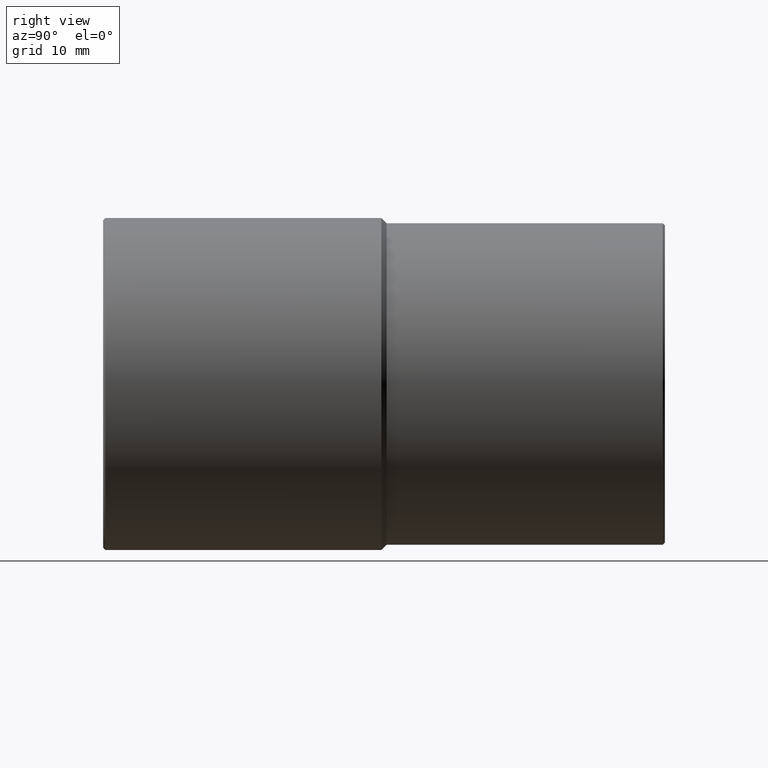
[diagram: clean part render]
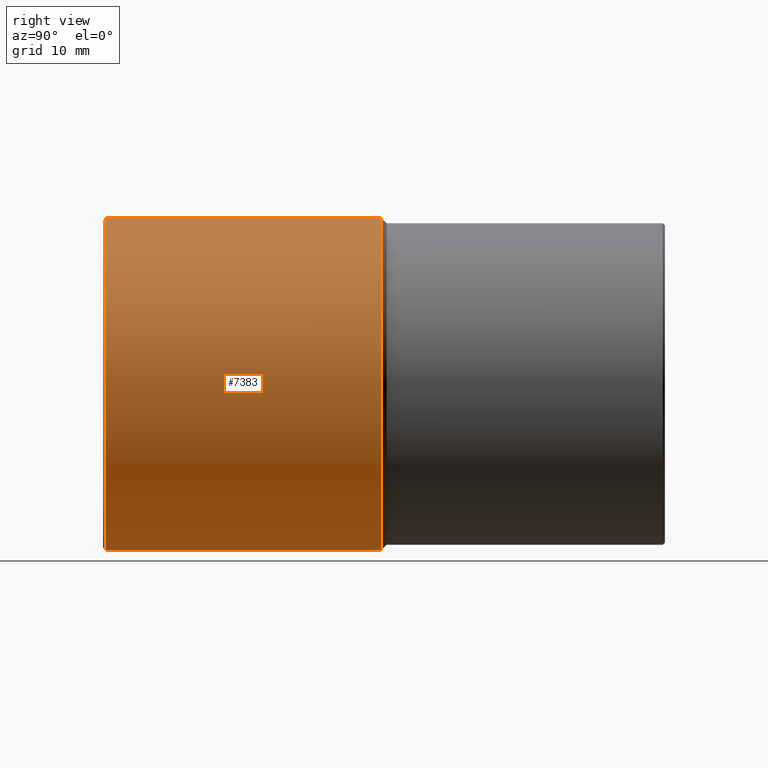
[diagram: same view with one face highlighted and labeled with its STEP entity id]
A machine part, right view. The second image highlights one B-rep face of the part: STEP entity #7383.
In plain terms, the highlighted cylindrical surface (partial cylindrical patch) has radius 19.2 mm, axis along (0, 1, 0).
Its self-contained STEP definition (entity closure, byte-faithful):
#215 = AXIS2_PLACEMENT_3D ( 'NONE', #8708, #3425, #9624 ) ;
#790 = DIRECTION ( 'NONE',  ( 0.0000000000000000000, 0.0000000000000000000, 1.000000000000000000 ) ) ;
#1262 = EDGE_LOOP ( 'NONE', ( #2031, #4617, #4520, #3347 ) ) ;
#1460 = VECTOR ( 'NONE', #8615, 1000.000000000000000 ) ;
#1494 = EDGE_CURVE ( 'NONE', #8399, #9761, #10001, .T. ) ;
#1961 = EDGE_CURVE ( 'NONE', #2602, #9761, #6008, .T. ) ;
#2031 = ORIENTED_EDGE ( 'NONE', *, *, #10608, .T. ) ;
#2426 = CARTESIAN_POINT ( 'NONE',  ( 0.0000000000000000000, -0.3000000000000224700, 19.19999999999999900 ) ) ;
#2602 = VERTEX_POINT ( 'NONE', #9857 ) ;
#2872 = CARTESIAN_POINT ( 'NONE',  ( 2.351321854362917700E-015, -32.24999999999998600, -19.19999999999999900 ) ) ;
#3101 = DIRECTION ( 'NONE',  ( 0.0000000000000000000, 0.0000000000000000000, 1.000000000000000000 ) ) ;
#3347 = ORIENTED_EDGE ( 'NONE', *, *, #1494, .F. ) ;
#3425 = DIRECTION ( 'NONE',  ( -0.0000000000000000000, 1.000000000000000000, -0.0000000000000000000 ) ) ;
#3490 = VECTOR ( 'NONE', #10906, 1000.000000000000000 ) ;
#3766 = LINE ( 'NONE', #5988, #1460 ) ;
#3983 = CARTESIAN_POINT ( 'NONE',  ( 0.0000000000000000000, -32.50000000000000000, 0.0000000000000000000 ) ) ;
#4520 = ORIENTED_EDGE ( 'NONE', *, *, #1961, .T. ) ;
#4617 = ORIENTED_EDGE ( 'NONE', *, *, #8907, .T. ) ;
#5790 = DIRECTION ( 'NONE',  ( 0.0000000000000000000, 1.000000000000000000, 0.0000000000000000000 ) ) ;
#5988 = CARTESIAN_POINT ( 'NONE',  ( 2.351321854362917700E-015, -32.50000000000000000, -19.19999999999999900 ) ) ;
#6008 = CIRCLE ( 'NONE', #9141, 19.19999999999999900 ) ;
#6571 = CARTESIAN_POINT ( 'NONE',  ( 0.0000000000000000000, -0.3000000000000224700, 0.0000000000000000000 ) ) ;
#7293 = VERTEX_POINT ( 'NONE', #2872 ) ;
#7383 = ADVANCED_FACE ( 'NONE', ( #8618 ), #10702, .T. ) ;
#8031 = CIRCLE ( 'NONE', #215, 19.19999999999999900 ) ;
#8045 = CARTESIAN_POINT ( 'NONE',  ( 0.0000000000000000000, -32.24999999999998600, 19.19999999999999900 ) ) ;
#8399 = VERTEX_POINT ( 'NONE', #8045 ) ;
#8615 = DIRECTION ( 'NONE',  ( 0.0000000000000000000, 1.000000000000000000, 0.0000000000000000000 ) ) ;
#8618 = FACE_OUTER_BOUND ( 'NONE', #1262, .T. ) ;
#8708 = CARTESIAN_POINT ( 'NONE',  ( 0.0000000000000000000, -32.24999999999998600, 0.0000000000000000000 ) ) ;
#8907 = EDGE_CURVE ( 'NONE', #7293, #2602, #3766, .T. ) ;
#9141 = AXIS2_PLACEMENT_3D ( 'NONE', #6571, #9598, #790 ) ;
#9598 = DIRECTION ( 'NONE',  ( 0.0000000000000000000, -1.000000000000000000, 0.0000000000000000000 ) ) ;
#9624 = DIRECTION ( 'NONE',  ( 0.0000000000000000000, 0.0000000000000000000, 1.000000000000000000 ) ) ;
#9761 = VERTEX_POINT ( 'NONE', #2426 ) ;
#9857 = CARTESIAN_POINT ( 'NONE',  ( 2.351321854362917700E-015, -0.3000000000000224700, -19.19999999999999900 ) ) ;
#10001 = LINE ( 'NONE', #10867, #3490 ) ;
#10608 = EDGE_CURVE ( 'NONE', #8399, #7293, #8031, .T. ) ;
#10702 = CYLINDRICAL_SURFACE ( 'NONE', #10832, 19.19999999999999900 ) ;
#10832 = AXIS2_PLACEMENT_3D ( 'NONE', #3983, #5790, #3101 ) ;
#10867 = CARTESIAN_POINT ( 'NONE',  ( 0.0000000000000000000, -32.50000000000000000, 19.19999999999999900 ) ) ;
#10906 = DIRECTION ( 'NONE',  ( 0.0000000000000000000, 1.000000000000000000, 0.0000000000000000000 ) ) ;